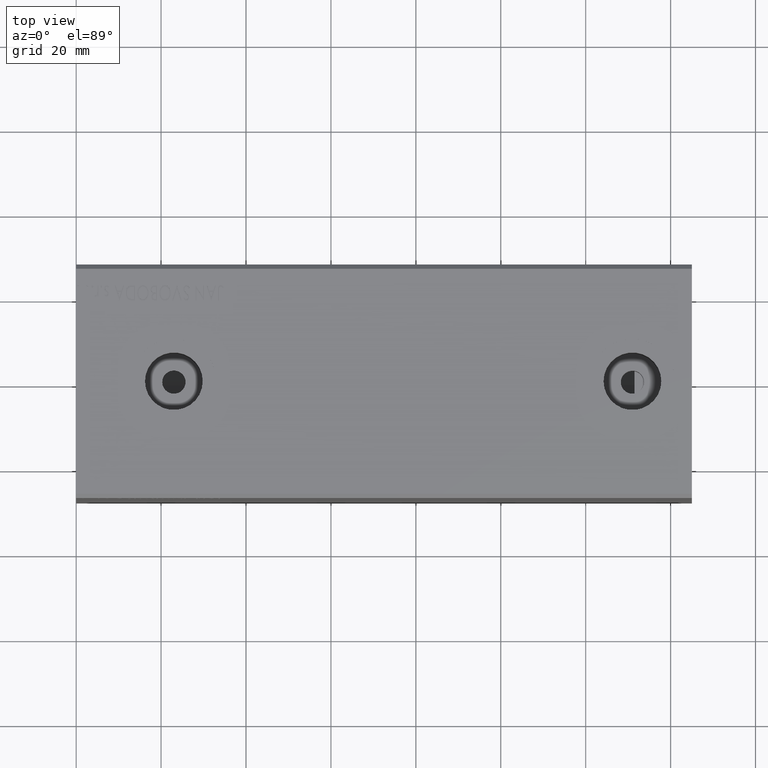
[diagram: clean part render]
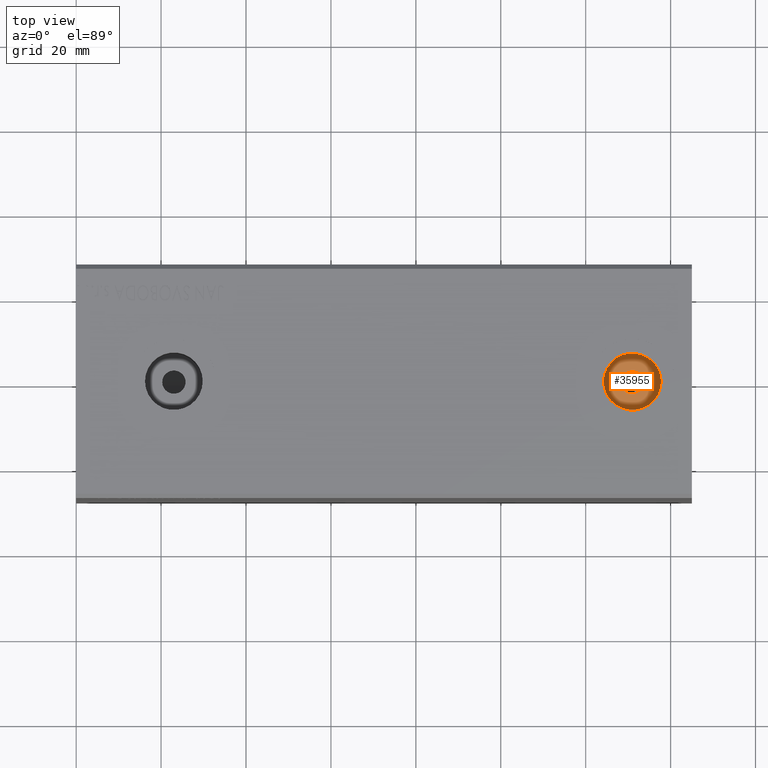
[diagram: same view with one face highlighted and labeled with its STEP entity id]
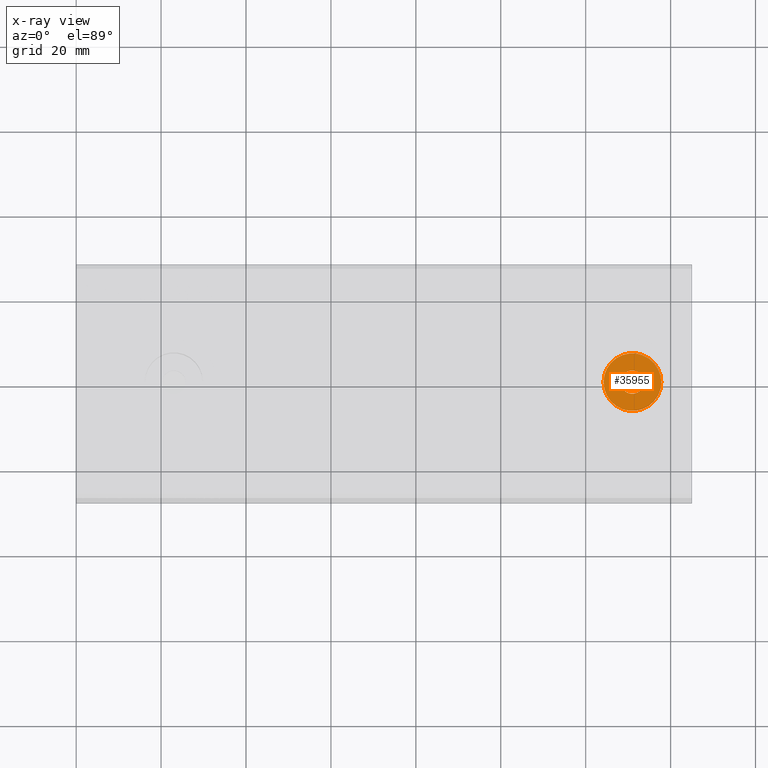
[diagram: x-ray of the same camera — body ghosted, the highlighted face saturated]
A machine part, top view. The second image highlights one B-rep face of the part: STEP entity #35955.
The next image is the same camera in x-ray: the body ghosted, the highlighted face saturated — about 0% of this face is hidden behind the body in this view.
In plain terms, the highlighted planar face has unit normal (0, 0, 1).
Its self-contained STEP definition (entity closure, byte-faithful):
#1449 = AXIS2_PLACEMENT_3D ( 'NONE', #8326, #34531, #21658 ) ;
#2150 = EDGE_CURVE ( 'NONE', #16299, #18803, #12792, .T. ) ;
#3706 = CARTESIAN_POINT ( 'NONE',  ( 130.9999999999999716, 0.000000000000000000, 24.24000000000000554 ) ) ;
#5293 = ORIENTED_EDGE ( 'NONE', *, *, #29647, .F. ) ;
#8286 = VERTEX_POINT ( 'NONE', #22338 ) ;
#8326 = CARTESIAN_POINT ( 'NONE',  ( 130.9999999999999716, 0.000000000000000000, 24.24000000000000554 ) ) ;
#10946 = DIRECTION ( 'NONE',  ( 1.000000000000000000, 0.000000000000000000, 0.000000000000000000 ) ) ;
#11092 = CIRCLE ( 'NONE', #28876, 6.800000000000000711 ) ;
#12377 = CARTESIAN_POINT ( 'NONE',  ( 128.2499999999999716, 3.367778697655239254E-16, 24.24000000000000554 ) ) ;
#12385 = AXIS2_PLACEMENT_3D ( 'NONE', #3706, #29077, #16786 ) ;
#12792 = CIRCLE ( 'NONE', #21058, 2.750000000000002665 ) ;
#14413 = EDGE_LOOP ( 'NONE', ( #18483, #15065 ) ) ;
#14548 = FACE_OUTER_BOUND ( 'NONE', #14413, .T. ) ;
#15065 = ORIENTED_EDGE ( 'NONE', *, *, #33661, .T. ) ;
#15200 = FACE_BOUND ( 'NONE', #41439, .T. ) ;
#16299 = VERTEX_POINT ( 'NONE', #40580 ) ;
#16786 = DIRECTION ( 'NONE',  ( 1.000000000000000000, 0.000000000000000000, 0.000000000000000000 ) ) ;
#18483 = ORIENTED_EDGE ( 'NONE', *, *, #29461, .T. ) ;
#18803 = VERTEX_POINT ( 'NONE', #12377 ) ;
#21058 = AXIS2_PLACEMENT_3D ( 'NONE', #41693, #38471, #42108 ) ;
#21658 = DIRECTION ( 'NONE',  ( 1.000000000000000000, 0.000000000000000000, -0.000000000000000000 ) ) ;
#21690 = VERTEX_POINT ( 'NONE', #24054 ) ;
#22338 = CARTESIAN_POINT ( 'NONE',  ( 124.1999999999999744, 8.327598234201995202E-16, 24.24000000000000554 ) ) ;
#22719 = CIRCLE ( 'NONE', #24765, 2.750000000000002665 ) ;
#24054 = CARTESIAN_POINT ( 'NONE',  ( 137.7999999999999829, 0.000000000000000000, 24.24000000000000554 ) ) ;
#24765 = AXIS2_PLACEMENT_3D ( 'NONE', #28599, #25164, #31608 ) ;
#25164 = DIRECTION ( 'NONE',  ( 0.000000000000000000, 0.000000000000000000, 1.000000000000000000 ) ) ;
#28599 = CARTESIAN_POINT ( 'NONE',  ( 130.9999999999999716, 0.000000000000000000, 24.24000000000000554 ) ) ;
#28876 = AXIS2_PLACEMENT_3D ( 'NONE', #40591, #40380, #10946 ) ;
#29077 = DIRECTION ( 'NONE',  ( 0.000000000000000000, 0.000000000000000000, 1.000000000000000000 ) ) ;
#29461 = EDGE_CURVE ( 'NONE', #21690, #8286, #35732, .T. ) ;
#29647 = EDGE_CURVE ( 'NONE', #18803, #16299, #22719, .T. ) ;
#31608 = DIRECTION ( 'NONE',  ( 1.000000000000000000, 0.000000000000000000, 0.000000000000000000 ) ) ;
#33661 = EDGE_CURVE ( 'NONE', #8286, #21690, #11092, .T. ) ;
#34531 = DIRECTION ( 'NONE',  ( 0.000000000000000000, 0.000000000000000000, 1.000000000000000000 ) ) ;
#35732 = CIRCLE ( 'NONE', #12385, 6.800000000000000711 ) ;
#35955 = ADVANCED_FACE ( 'NONE', ( #15200, #14548 ), #37966, .T. ) ;
#37966 = PLANE ( 'NONE',  #1449 ) ;
#38471 = DIRECTION ( 'NONE',  ( 0.000000000000000000, 0.000000000000000000, 1.000000000000000000 ) ) ;
#40373 = ORIENTED_EDGE ( 'NONE', *, *, #2150, .F. ) ;
#40380 = DIRECTION ( 'NONE',  ( 0.000000000000000000, 0.000000000000000000, 1.000000000000000000 ) ) ;
#40580 = CARTESIAN_POINT ( 'NONE',  ( 133.7499999999999716, 0.000000000000000000, 24.24000000000000554 ) ) ;
#40591 = CARTESIAN_POINT ( 'NONE',  ( 130.9999999999999716, 0.000000000000000000, 24.24000000000000554 ) ) ;
#41439 = EDGE_LOOP ( 'NONE', ( #40373, #5293 ) ) ;
#41693 = CARTESIAN_POINT ( 'NONE',  ( 130.9999999999999716, 0.000000000000000000, 24.24000000000000554 ) ) ;
#42108 = DIRECTION ( 'NONE',  ( 1.000000000000000000, 0.000000000000000000, 0.000000000000000000 ) ) ;